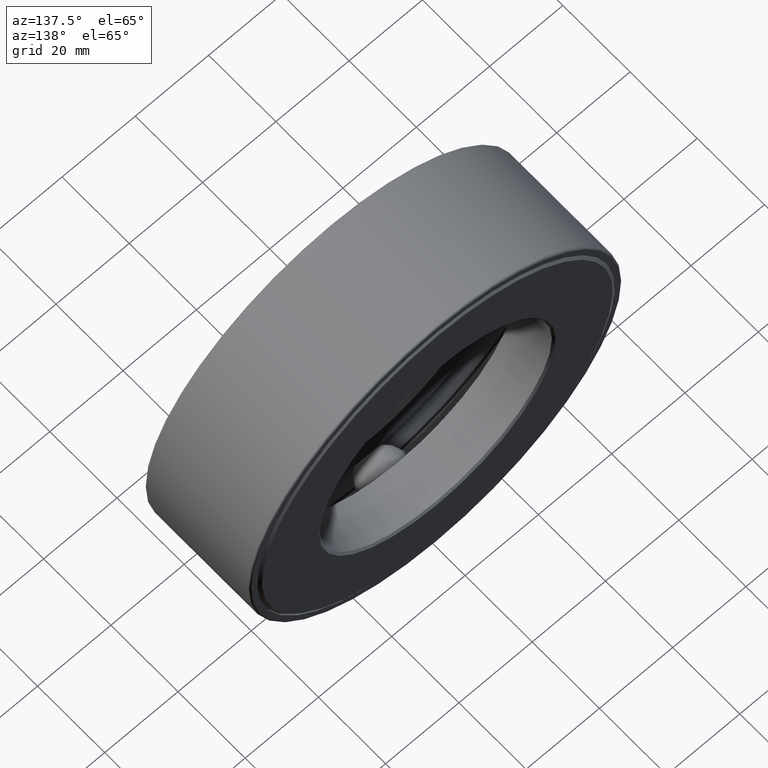
[diagram: clean part render]
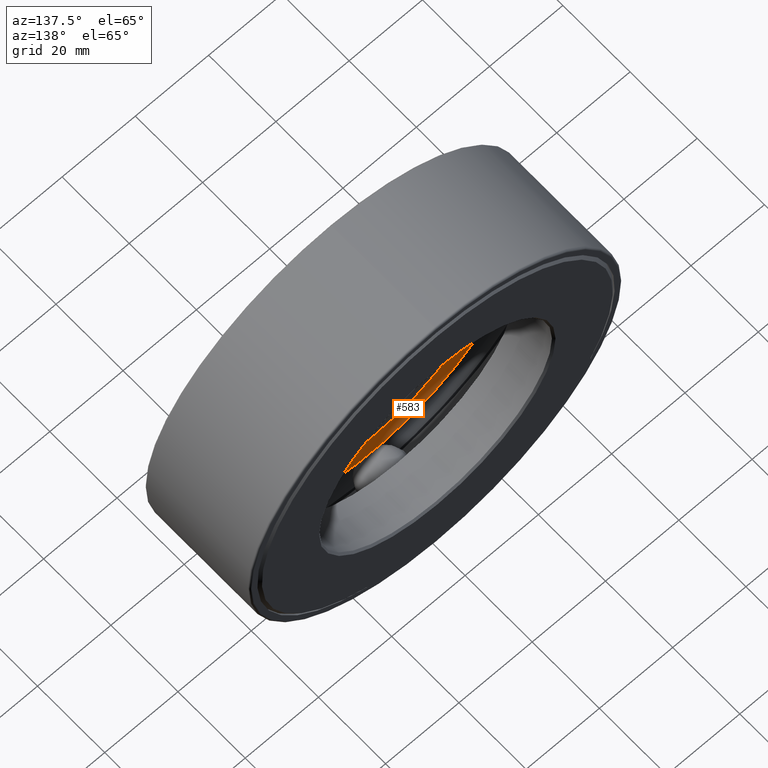
[diagram: same view with one face highlighted and labeled with its STEP entity id]
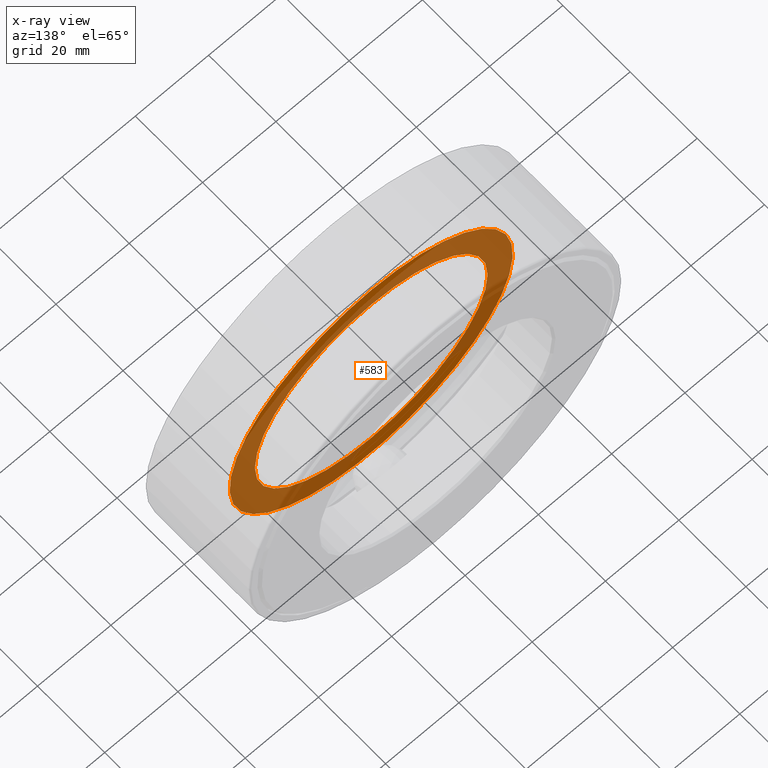
[diagram: x-ray of the same camera — body ghosted, the highlighted face saturated]
A machine part, auxiliary view. The second image highlights one B-rep face of the part: STEP entity #583.
The next image is the same camera in x-ray: the body ghosted, the highlighted face saturated — about 75% of this face is hidden behind the body in this view.
In plain terms, the highlighted planar face has unit normal (0, -1, 0).
Its self-contained STEP definition (entity closure, byte-faithful):
#19 = CARTESIAN_POINT ( 'NONE',  ( 0.0000000000000000000, 0.4749999999999999800, 0.0000000000000000000 ) ) ;
#23 = CIRCLE ( 'NONE', #336, 1.250000000000000000 ) ;
#47 = VERTEX_POINT ( 'NONE', #125 ) ;
#67 = DIRECTION ( 'NONE',  ( 0.0000000000000000000, -1.000000000000000000, 0.0000000000000000000 ) ) ;
#119 = AXIS2_PLACEMENT_3D ( 'NONE', #19, #154, #338 ) ;
#125 = CARTESIAN_POINT ( 'NONE',  ( 0.0000000000000000000, 0.4749999999999999800, 1.520999999999999700 ) ) ;
#132 = FACE_OUTER_BOUND ( 'NONE', #319, .T. ) ;
#137 = AXIS2_PLACEMENT_3D ( 'NONE', #467, #67, #199 ) ;
#154 = DIRECTION ( 'NONE',  ( -0.0000000000000000000, 1.000000000000000000, -0.0000000000000000000 ) ) ;
#199 = DIRECTION ( 'NONE',  ( 0.0000000000000000000, -0.0000000000000000000, -1.000000000000000000 ) ) ;
#243 = FACE_BOUND ( 'NONE', #502, .T. ) ;
#264 = CIRCLE ( 'NONE', #119, 1.520999999999999700 ) ;
#266 = ORIENTED_EDGE ( 'NONE', *, *, #499, .T. ) ;
#319 = EDGE_LOOP ( 'NONE', ( #266 ) ) ;
#331 = CARTESIAN_POINT ( 'NONE',  ( 0.0000000000000000000, 0.4750000000000002600, 0.0000000000000000000 ) ) ;
#336 = AXIS2_PLACEMENT_3D ( 'NONE', #331, #462, #464 ) ;
#338 = DIRECTION ( 'NONE',  ( 0.0000000000000000000, 0.0000000000000000000, 1.000000000000000000 ) ) ;
#352 = VERTEX_POINT ( 'NONE', #435 ) ;
#370 = PLANE ( 'NONE',  #137 ) ;
#416 = EDGE_CURVE ( 'NONE', #352, #352, #23, .T. ) ;
#435 = CARTESIAN_POINT ( 'NONE',  ( 0.0000000000000000000, 0.4750000000000002600, 1.250000000000000000 ) ) ;
#449 = ORIENTED_EDGE ( 'NONE', *, *, #416, .F. ) ;
#462 = DIRECTION ( 'NONE',  ( -0.0000000000000000000, 1.000000000000000000, -0.0000000000000000000 ) ) ;
#464 = DIRECTION ( 'NONE',  ( 0.0000000000000000000, 0.0000000000000000000, 1.000000000000000000 ) ) ;
#467 = CARTESIAN_POINT ( 'NONE',  ( -4.788294453839597400E-016, 0.4750000000000001400, 0.0000000000000000000 ) ) ;
#499 = EDGE_CURVE ( 'NONE', #47, #47, #264, .T. ) ;
#502 = EDGE_LOOP ( 'NONE', ( #449 ) ) ;
#583 = ADVANCED_FACE ( 'NONE', ( #243, #132 ), #370, .F. ) ;